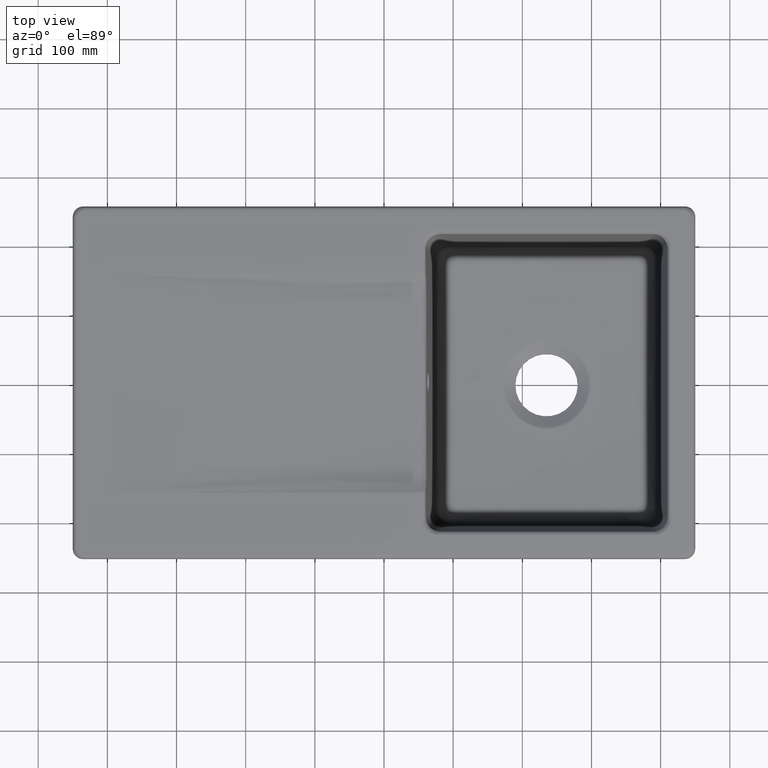
[diagram: clean part render]
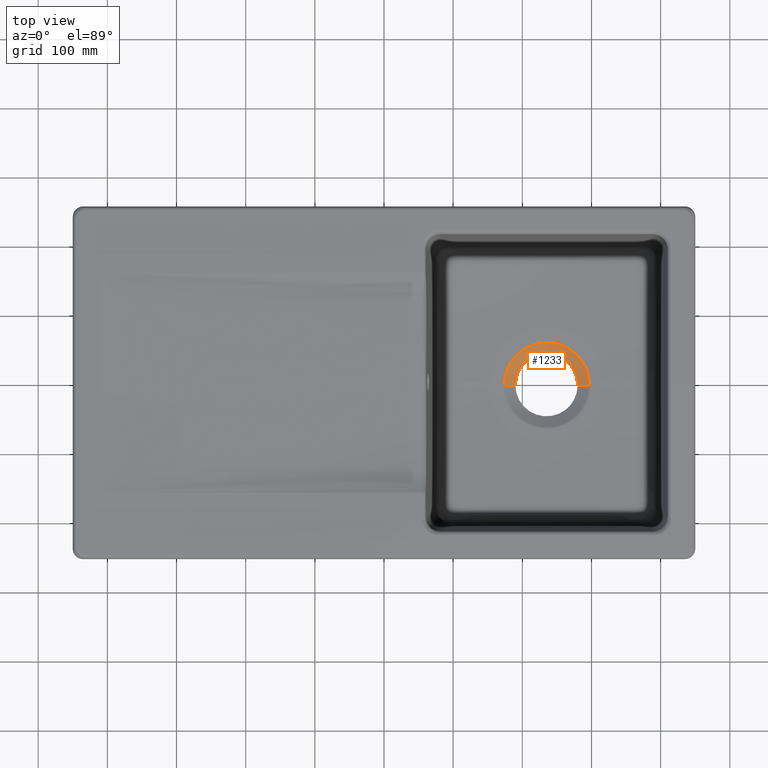
[diagram: same view with one face highlighted and labeled with its STEP entity id]
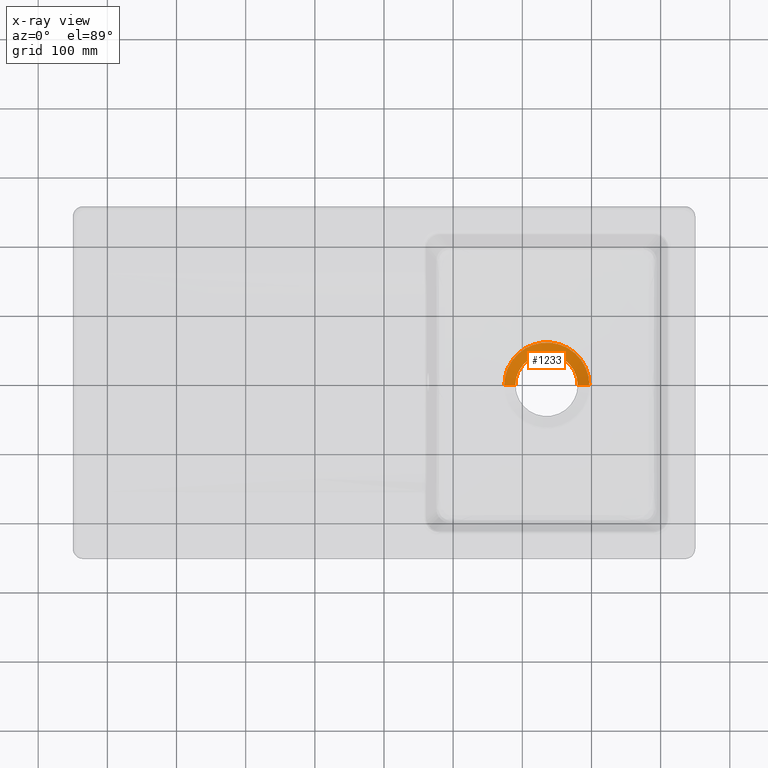
[diagram: x-ray of the same camera — body ghosted, the highlighted face saturated]
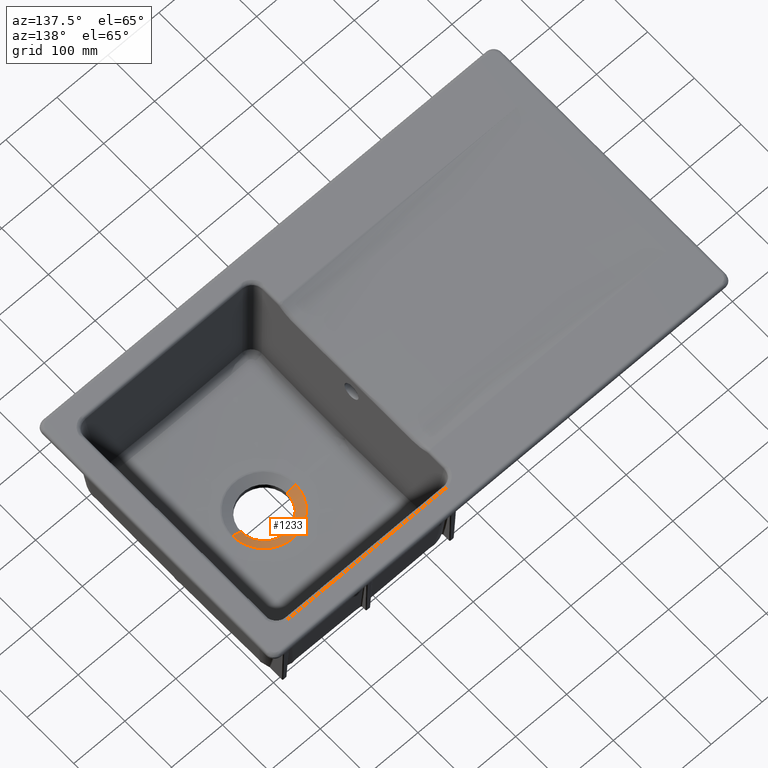
[diagram: same view with one face highlighted and labeled with its STEP entity id]
A machine part, top view. The second image highlights one B-rep face of the part: STEP entity #1233.
The next image is the same camera in x-ray: the body ghosted, the highlighted face saturated — about 0% of this face is hidden behind the body in this view.
A second angle (auxiliary view) of the same face is appended — the face is thin or edge-on in the first view.
In plain terms, the highlighted face is a freeform B-spline surface patch.
Its self-contained STEP definition (entity closure, byte-faithful):
#56=B_SPLINE_SURFACE_WITH_KNOTS('',3,3,((#9302,#9303,#9304,#9305,#9306,
#9307,#9308,#9309,#9310,#9311,#9312,#9313,#9314,#9315,#9316,#9317,#9318,
#9319,#9320,#9321,#9322,#9323,#9324,#9325,#9326,#9327,#9328,#9329,#9330,
#9331,#9332,#9333,#9334,#9335,#9336,#9337,#9338,#9339,#9340,#9341,#9342,
#9343,#9344,#9345,#9346,#9347,#9348,#9349,#9350,#9351,#9352),(#9353,#9354,
#9355,#9356,#9357,#9358,#9359,#9360,#9361,#9362,#9363,#9364,#9365,#9366,
#9367,#9368,#9369,#9370,#9371,#9372,#9373,#9374,#9375,#9376,#9377,#9378,
#9379,#9380,#9381,#9382,#9383,#9384,#9385,#9386,#9387,#9388,#9389,#9390,
#9391,#9392,#9393,#9394,#9395,#9396,#9397,#9398,#9399,#9400,#9401,#9402,
#9403),(#9404,#9405,#9406,#9407,#9408,#9409,#9410,#9411,#9412,#9413,#9414,
#9415,#9416,#9417,#9418,#9419,#9420,#9421,#9422,#9423,#9424,#9425,#9426,
#9427,#9428,#9429,#9430,#9431,#9432,#9433,#9434,#9435,#9436,#9437,#9438,
#9439,#9440,#9441,#9442,#9443,#9444,#9445,#9446,#9447,#9448,#9449,#9450,
#9451,#9452,#9453,#9454),(#9455,#9456,#9457,#9458,#9459,#9460,#9461,#9462,
#9463,#9464,#9465,#9466,#9467,#9468,#9469,#9470,#9471,#9472,#9473,#9474,
#9475,#9476,#9477,#9478,#9479,#9480,#9481,#9482,#9483,#9484,#9485,#9486,
#9487,#9488,#9489,#9490,#9491,#9492,#9493,#9494,#9495,#9496,#9497,#9498,
#9499,#9500,#9501,#9502,#9503,#9504,#9505),(#9506,#9507,#9508,#9509,#9510,
#9511,#9512,#9513,#9514,#9515,#9516,#9517,#9518,#9519,#9520,#9521,#9522,
#9523,#9524,#9525,#9526,#9527,#9528,#9529,#9530,#9531,#9532,#9533,#9534,
#9535,#9536,#9537,#9538,#9539,#9540,#9541,#9542,#9543,#9544,#9545,#9546,
#9547,#9548,#9549,#9550,#9551,#9552,#9553,#9554,#9555,#9556),(#9557,#9558,
#9559,#9560,#9561,#9562,#9563,#9564,#9565,#9566,#9567,#9568,#9569,#9570,
#9571,#9572,#9573,#9574,#9575,#9576,#9577,#9578,#9579,#9580,#9581,#9582,
#9583,#9584,#9585,#9586,#9587,#9588,#9589,#9590,#9591,#9592,#9593,#9594,
#9595,#9596,#9597,#9598,#9599,#9600,#9601,#9602,#9603,#9604,#9605,#9606,
#9607),(#9608,#9609,#9610,#9611,#9612,#9613,#9614,#9615,#9616,#9617,#9618,
#9619,#9620,#9621,#9622,#9623,#9624,#9625,#9626,#9627,#9628,#9629,#9630,
#9631,#9632,#9633,#9634,#9635,#9636,#9637,#9638,#9639,#9640,#9641,#9642,
#9643,#9644,#9645,#9646,#9647,#9648,#9649,#9650,#9651,#9652,#9653,#9654,
#9655,#9656,#9657,#9658),(#9659,#9660,#9661,#9662,#9663,#9664,#9665,#9666,
#9667,#9668,#9669,#9670,#9671,#9672,#9673,#9674,#9675,#9676,#9677,#9678,
#9679,#9680,#9681,#9682,#9683,#9684,#9685,#9686,#9687,#9688,#9689,#9690,
#9691,#9692,#9693,#9694,#9695,#9696,#9697,#9698,#9699,#9700,#9701,#9702,
#9703,#9704,#9705,#9706,#9707,#9708,#9709),(#9710,#9711,#9712,#9713,#9714,
#9715,#9716,#9717,#9718,#9719,#9720,#9721,#9722,#9723,#9724,#9725,#9726,
#9727,#9728,#9729,#9730,#9731,#9732,#9733,#9734,#9735,#9736,#9737,#9738,
#9739,#9740,#9741,#9742,#9743,#9744,#9745,#9746,#9747,#9748,#9749,#9750,
#9751,#9752,#9753,#9754,#9755,#9756,#9757,#9758,#9759,#9760),(#9761,#9762,
#9763,#9764,#9765,#9766,#9767,#9768,#9769,#9770,#9771,#9772,#9773,#9774,
#9775,#9776,#9777,#9778,#9779,#9780,#9781,#9782,#9783,#9784,#9785,#9786,
#9787,#9788,#9789,#9790,#9791,#9792,#9793,#9794,#9795,#9796,#9797,#9798,
#9799,#9800,#9801,#9802,#9803,#9804,#9805,#9806,#9807,#9808,#9809,#9810,
#9811),(#9812,#9813,#9814,#9815,#9816,#9817,#9818,#9819,#9820,#9821,#9822,
#9823,#9824,#9825,#9826,#9827,#9828,#9829,#9830,#9831,#9832,#9833,#9834,
#9835,#9836,#9837,#9838,#9839,#9840,#9841,#9842,#9843,#9844,#9845,#9846,
#9847,#9848,#9849,#9850,#9851,#9852,#9853,#9854,#9855,#9856,#9857,#9858,
#9859,#9860,#9861,#9862)),.UNSPECIFIED.,.F.,.F.,.F.,(4,1,1,1,1,1,1,1,4),
(4,2,2,2,2,2,2,2,2,2,1,2,2,2,2,2,2,2,2,2,2,2,2,2,2,4),(0.,0.0481751764546164,
0.0838681897529503,0.11607870494931,0.148289220145671,0.209140949208557,
0.212710250538391,0.227026035070106,1.),(0.,0.00980296049406921,0.0710714635820019,
0.101705715125968,0.132339966669935,0.193608469757867,0.224242721301833,
0.254876972845799,0.316145475933732,0.346779727477698,0.377413979021665,
0.408048230565631,0.438682482109598,0.499950985197531,0.530585236741497,
0.561219488285464,0.622487991373396,0.653122242917363,0.683756494461329,
0.745024997549261,0.806293500637193,0.836927752181159,0.867562003725125,
0.928830506813058,0.99009900990099,1.),.UNSPECIFIED.);
#339=B_SPLINE_CURVE_WITH_KNOTS('',3,(#7821,#7822,#7823,#7824,#7825,#7826,
#7827,#7828,#7829,#7830,#7831,#7832,#7833,#7834,#7835,#7836,#7837,#7838,
#7839,#7840,#7841,#7842,#7843,#7844,#7845,#7846,#7847,#7848,#7849,#7850,
#7851,#7852,#7853,#7854),.UNSPECIFIED.,.F.,.F.,(4,2,2,2,2,2,2,2,2,2,2,2,
2,2,2,2,4),(0.,0.0625,0.125,0.1875,0.25,0.3125,0.375,0.4375,0.5,0.5625,
0.625,0.6875,0.75,0.8125,0.875,0.9375,1.),.UNSPECIFIED.);
#395=B_SPLINE_CURVE_WITH_KNOTS('',3,(#9266,#9267,#9268,#9269),
 .UNSPECIFIED.,.F.,.F.,(4,4),(0.,1.),.UNSPECIFIED.);
#396=B_SPLINE_CURVE_WITH_KNOTS('',3,(#9271,#9272,#9273,#9274),
 .UNSPECIFIED.,.F.,.F.,(4,4),(0.,1.),.UNSPECIFIED.);
#397=B_SPLINE_CURVE_WITH_KNOTS('',3,(#9276,#9277,#9278,#9279,#9280,#9281,
#9282,#9283,#9284,#9285,#9286,#9287,#9288,#9289,#9290,#9291,#9292,#9293,
#9294,#9295,#9296,#9297,#9298,#9299,#9300,#9301),.UNSPECIFIED.,.F.,.F.,
(4,2,2,2,2,2,2,2,2,2,2,2,4),(0.,0.125,0.25,0.3125,0.375,0.4375,0.5,0.625,
0.6875,0.75,0.8125,0.875,1.),.UNSPECIFIED.);
#1233=ADVANCED_FACE('',(#1588),#56,.T.);
#1588=FACE_OUTER_BOUND('',#1920,.T.);
#1920=EDGE_LOOP('',(#2527,#2528,#2529,#2530));
#2527=ORIENTED_EDGE('',*,*,#4393,.F.);
#2528=ORIENTED_EDGE('',*,*,#4254,.T.);
#2529=ORIENTED_EDGE('',*,*,#4394,.F.);
#2530=ORIENTED_EDGE('',*,*,#4395,.F.);
#3779=VERTEX_POINT('',#7162);
#3781=VERTEX_POINT('',#7312);
#3875=VERTEX_POINT('',#9270);
#3876=VERTEX_POINT('',#9275);
#4254=EDGE_CURVE('',#3781,#3779,#339,.T.);
#4393=EDGE_CURVE('',#3781,#3875,#395,.T.);
#4394=EDGE_CURVE('',#3876,#3779,#396,.T.);
#4395=EDGE_CURVE('',#3875,#3876,#397,.T.);
#7162=CARTESIAN_POINT('',(174.106075905745,0.000689787351148888,-200.295757093103));
#7312=CARTESIAN_POINT('',(296.894853272102,0.000705542883609147,-200.271552165662));
#7821=CARTESIAN_POINT('',(296.895477079672,-1.38919913511184E-14,-200.27263707282));
#7822=CARTESIAN_POINT('',(296.902460884382,4.08010811618891,-200.272298705178));
#7823=CARTESIAN_POINT('',(296.514069328905,8.0367705300038,-200.271530409426));
#7824=CARTESIAN_POINT('',(294.957890198809,15.9296265301385,-200.27165449576));
#7825=CARTESIAN_POINT('',(293.792242872979,19.7996863689592,-200.27184960564));
#7826=CARTESIAN_POINT('',(290.703692149865,27.2794122582054,-200.27217585702));
#7827=CARTESIAN_POINT('',(288.837464002236,30.7795977284551,-200.272409343707));
#7828=CARTESIAN_POINT('',(284.364787432127,37.4958225326043,-200.273037610196));
#7829=CARTESIAN_POINT('',(281.795351555056,40.6331988518361,-200.273376106257));
#7830=CARTESIAN_POINT('',(276.104575611236,46.3336008959262,-200.274283801003));
#7831=CARTESIAN_POINT('',(273.040698313252,48.8572225145522,-200.274791956489));
#7832=CARTESIAN_POINT('',(266.295294488867,53.375507600685,-200.275914301853));
#7833=CARTESIAN_POINT('',(262.727220195161,55.2804713689488,-200.276540102359));
#7834=CARTESIAN_POINT('',(255.350498492465,58.3426177293803,-200.277860047805));
#7835=CARTESIAN_POINT('',(251.486292648763,59.523588240268,-200.278420807893));
#7836=CARTESIAN_POINT('',(243.520290852126,61.1116196791733,-200.279855687933));
#7837=CARTESIAN_POINT('',(239.569356500561,61.4995409773685,-200.281369496293));
#7838=CARTESIAN_POINT('',(231.515982501151,61.5050925849822,-200.283101200267));
#7839=CARTESIAN_POINT('',(227.480939398892,61.1099850080889,-200.282985562604));
#7840=CARTESIAN_POINT('',(219.564503882395,59.5353083826595,-200.284636286534));
#7841=CARTESIAN_POINT('',(215.768366074245,58.3855947442939,-200.285554785934));
#7842=CARTESIAN_POINT('',(208.293572225083,55.2933617941391,-200.287146919545));
#7843=CARTESIAN_POINT('',(204.727718734658,53.385625306356,-200.287931933871));
#7844=CARTESIAN_POINT('',(198.03868440267,48.9146767883709,-200.289409051354));
#7845=CARTESIAN_POINT('',(194.963260468508,46.3966964260402,-200.290128699713));
#7846=CARTESIAN_POINT('',(189.200167795339,40.6320675397774,-200.291499311088));
#7847=CARTESIAN_POINT('',(186.678949707019,37.5506017684797,-200.292102866861));
#7848=CARTESIAN_POINT('',(182.21132386172,30.8612917173605,-200.293283386345));
#7849=CARTESIAN_POINT('',(180.306793821356,27.299340312247,-200.293805256813));
#7850=CARTESIAN_POINT('',(177.214535107742,19.8176983344342,-200.294718801863));
#7851=CARTESIAN_POINT('',(176.066484000637,16.0206639602873,-200.295019154941));
#7852=CARTESIAN_POINT('',(174.495431388239,8.10835274081981,-200.29558740214));
#7853=CARTESIAN_POINT('',(174.098433979384,4.07985293253689,-200.296629868968));
#7854=CARTESIAN_POINT('',(174.105445490616,-2.89889382218288E-14,-200.296853136298));
#9266=CARTESIAN_POINT('',(296.895477298257,-2.47598354319456E-14,-200.27263694662));
#9267=CARTESIAN_POINT('',(291.263651532177,-2.28992799281515E-14,-203.524173068695));
#9268=CARTESIAN_POINT('',(285.63182576609,-6.7647485445602E-15,-206.775709190767));
#9269=CARTESIAN_POINT('',(280.000000000014,-1.39950381096755E-14,-210.027245312844));
#9270=CARTESIAN_POINT('',(280.000000000007,-4.94874939699483E-11,-210.027245312848));
#9271=CARTESIAN_POINT('',(190.000000000017,-1.56514906942027E-14,-209.473578460948));
#9272=CARTESIAN_POINT('',(184.701815161735,-1.68850270137304E-14,-206.41467001835));
#9273=CARTESIAN_POINT('',(179.403630323453,-1.54801472842487E-14,-203.355761575752));
#9274=CARTESIAN_POINT('',(174.10544548517,-1.5570562985116E-14,-200.296853133153));
#9275=CARTESIAN_POINT('',(190.000000000003,6.44865070415484E-10,-209.473578460941));
#9276=CARTESIAN_POINT('',(280.,-9.89394514865811E-11,-210.027245312852));
#9277=CARTESIAN_POINT('',(280.000000000013,5.94716553743018,-210.032964445664));
#9278=CARTESIAN_POINT('',(278.83724822178,11.766420057402,-210.032062856258));
#9279=CARTESIAN_POINT('',(274.293560156665,22.7193552470084,-210.027577598765));
#9280=CARTESIAN_POINT('',(270.975990429457,27.6713585734145,-210.000821286661));
#9281=CARTESIAN_POINT('',(264.697372566649,33.938327239382,-209.983419076304));
#9282=CARTESIAN_POINT('',(262.427727415356,35.7959166198855,-209.963327517576));
#9283=CARTESIAN_POINT('',(257.541746178397,39.0576184253163,-209.945614459932));
#9284=CARTESIAN_POINT('',(254.897383638422,40.468964233323,-209.933921116297));
#9285=CARTESIAN_POINT('',(249.462986165494,42.7137562495885,-209.900576795358));
#9286=CARTESIAN_POINT('',(246.657106785465,43.5640672165982,-209.874094531502));
#9287=CARTESIAN_POINT('',(240.865493619911,44.7136676605129,-209.851317444921));
#9288=CARTESIAN_POINT('',(237.896724780355,45.002281015116,-209.822723676314));
#9289=CARTESIAN_POINT('',(229.100887597093,44.9953966192571,-209.783599458527));
#9290=CARTESIAN_POINT('',(223.175758536147,43.8131951247797,-209.72520044874));
#9291=CARTESIAN_POINT('',(215.048443186342,40.4417799932293,-209.684642170649));
#9292=CARTESIAN_POINT('',(212.412417820723,39.0319402223261,-209.656136319501));
#9293=CARTESIAN_POINT('',(207.51313034859,35.7514086854104,-209.633100270417));
#9294=CARTESIAN_POINT('',(205.248744665013,33.8898770226816,-209.605997412177));
#9295=CARTESIAN_POINT('',(201.088310530653,29.7263902274509,-209.584680174515));
#9296=CARTESIAN_POINT('',(199.190086010995,27.4092205325888,-209.561177123302));
#9297=CARTESIAN_POINT('',(195.933041998395,22.5252769706576,-209.542619834361));
#9298=CARTESIAN_POINT('',(194.54927766413,19.9377417469435,-209.523551237396));
#9299=CARTESIAN_POINT('',(191.152551755755,11.726005983027,-209.501849641731));
#9300=CARTESIAN_POINT('',(190.000000000103,5.94707811686675,-209.478842755072));
#9301=CARTESIAN_POINT('',(190.,7.73845586106179E-10,-209.47357846094));
#9302=CARTESIAN_POINT('',(269.988023149942,-1.33826655358982,-215.80631050313));
#9303=CARTESIAN_POINT('',(269.988809136279,-0.892177702393213,-215.806307493449));
#9304=CARTESIAN_POINT('',(269.989607107134,-0.446088870884872,-215.80632524164));
#9305=CARTESIAN_POINT('',(269.99521861966,2.78805544303089,-215.806152926217));
#9306=CARTESIAN_POINT('',(269.865244274298,4.11275474483563,-215.806014369634));
#9307=CARTESIAN_POINT('',(269.07740343179,8.1091562524692,-215.806285255446));
#9308=CARTESIAN_POINT('',(268.916304222749,8.75816497627436,-215.806390113357));
#9309=CARTESIAN_POINT('',(268.130908257019,11.3638463656275,-215.806660832589));
#9310=CARTESIAN_POINT('',(267.899165037712,12.0143863878895,-215.806781515208));
#9311=CARTESIAN_POINT('',(266.341010022399,15.7881548330652,-215.807231322922));
#9312=CARTESIAN_POINT('',(265.715852648216,16.9608188902975,-215.807527866341));
#9313=CARTESIAN_POINT('',(263.455045517151,20.3559026509986,-215.808191537302));
#9314=CARTESIAN_POINT('',(263.050678185625,20.9031682201074,-215.808369079647));
#9315=CARTESIAN_POINT('',(261.320505399127,23.0160686988168,-215.808863520513));
#9316=CARTESIAN_POINT('',(260.870472529897,23.5131009057065,-215.809062790808));
#9317=CARTESIAN_POINT('',(257.990108513305,26.3985429093562,-215.809916315356));
#9318=CARTESIAN_POINT('',(256.963677863515,27.2441100189473,-215.810369864641));
#9319=CARTESIAN_POINT('',(253.564729566611,29.5210339853019,-215.8113675951));
#9320=CARTESIAN_POINT('',(252.975037826706,29.8750372208569,-215.81161965712));
#9321=CARTESIAN_POINT('',(250.579776709513,31.1571350671315,-215.812332649155));
#9322=CARTESIAN_POINT('',(248.750461862187,32.0233835787093,-215.812956170252));
#9323=CARTESIAN_POINT('',(246.845706890811,32.7074342324995,-215.813609437453));
#9324=CARTESIAN_POINT('',(244.246698708846,33.4988173884827,-215.81434149352));
#9325=CARTESIAN_POINT('',(243.580907643067,33.6663514785626,-215.814592914907));
#9326=CARTESIAN_POINT('',(239.569169376798,34.4663003062462,-215.815778884015));
#9327=CARTESIAN_POINT('',(238.245671477055,34.5963793691357,-215.816600315151));
#9328=CARTESIAN_POINT('',(234.16603861788,34.5993991361722,-215.817933547332));
#9329=CARTESIAN_POINT('',(233.495378991914,34.5672608293684,-215.818105081366));
#9330=CARTESIAN_POINT('',(230.779809279341,34.3013606835583,-215.81864669217));
#9331=CARTESIAN_POINT('',(230.105698846658,34.2013481006284,-215.818908894398));
#9332=CARTESIAN_POINT('',(226.105432811628,33.4058585980021,-215.820182190216));
#9333=CARTESIAN_POINT('',(224.833342937503,33.0207261847927,-215.820780602866));
#9334=CARTESIAN_POINT('',(221.060960708178,31.4603538115872,-215.821993153971));
#9335=CARTESIAN_POINT('',(220.437003598118,31.1655056264395,-215.822267177647));
#9336=CARTESIAN_POINT('',(218.036233643628,29.8818434111244,-215.823053431794));
#9337=CARTESIAN_POINT('',(217.462488510498,29.5375895359427,-215.823306668635));
#9338=CARTESIAN_POINT('',(214.074350341523,27.2731773483273,-215.82441789142));
#9339=CARTESIAN_POINT('',(213.043936403741,26.429673548612,-215.824891247886));
#9340=CARTESIAN_POINT('',(209.174783979801,22.559785078507,-215.826224891248));
#9341=CARTESIAN_POINT('',(208.328008709125,21.5249832837868,-215.826617518101));
#9342=CARTESIAN_POINT('',(206.065524673316,18.1376135417819,-215.827450302399));
#9343=CARTESIAN_POINT('',(205.721564936274,17.5640602129936,-215.827619687959));
#9344=CARTESIAN_POINT('',(204.439267427752,15.1644722076966,-215.828104311561));
#9345=CARTESIAN_POINT('',(204.144134787912,14.5397538916196,-215.828249771856));
#9346=CARTESIAN_POINT('',(202.584092893052,10.7654794068725,-215.828863909367));
#9347=CARTESIAN_POINT('',(202.199302841734,9.49294933765629,-215.829041855284));
#9348=CARTESIAN_POINT('',(201.140780387827,4.16214272087774,-215.82949793196));
#9349=CARTESIAN_POINT('',(201.00483391885,2.78271011742261,-215.829867294489));
#9350=CARTESIAN_POINT('',(201.010392084273,-0.44968595497599,-215.830003861358));
#9351=CARTESIAN_POINT('',(201.011119202197,-0.899371985890104,-215.830102751875));
#9352=CARTESIAN_POINT('',(201.011869382835,-1.34905797883515,-215.830161696602));
#9353=CARTESIAN_POINT('',(270.437794341546,-1.34863454874163,-215.546627952285));
#9354=CARTESIAN_POINT('',(270.438585919876,-0.899089699161085,-215.546624058165));
#9355=CARTESIAN_POINT('',(270.439389065667,-0.449544868418938,-215.546640177943));
#9356=CARTESIAN_POINT('',(270.445044143892,2.80965542761872,-215.546466844256));
#9357=CARTESIAN_POINT('',(270.310751172346,4.17835484664939,-215.546319770812));
#9358=CARTESIAN_POINT('',(269.516571412845,8.20690843093639,-215.546590309722));
#9359=CARTESIAN_POINT('',(269.350153814641,8.87733892013467,-215.546695470144));
#9360=CARTESIAN_POINT('',(268.558336577498,11.504321724479,-215.546965752567));
#9361=CARTESIAN_POINT('',(268.319133566586,12.1757990646836,-215.547086409763));
#9362=CARTESIAN_POINT('',(266.748303717372,15.9802617259396,-215.547534669702));
#9363=CARTESIAN_POINT('',(266.102399347353,17.191836658019,-215.547831177182));
#9364=CARTESIAN_POINT('',(263.823309071451,20.6143725387581,-215.548492840133));
#9365=CARTESIAN_POINT('',(263.405751637045,21.1794864354618,-215.548670392073));
#9366=CARTESIAN_POINT('',(261.661401685902,23.3096974054956,-215.549163257356));
#9367=CARTESIAN_POINT('',(261.196512782535,23.8231341856052,-215.549362808189));
#9368=CARTESIAN_POINT('',(258.292949855039,26.7318118106717,-215.550214055639));
#9369=CARTESIAN_POINT('',(257.232457955058,27.6054324442961,-215.550668737621));
#9370=CARTESIAN_POINT('',(253.805756628493,29.9009434419419,-215.551663945607));
#9371=CARTESIAN_POINT('',(253.197013785983,30.2663804134632,-215.551916758485));
#9372=CARTESIAN_POINT('',(250.782241689962,31.5589187812035,-215.552628109089));
#9373=CARTESIAN_POINT('',(248.923090917368,32.4392916973295,-215.553251657553));
#9374=CARTESIAN_POINT('',(246.987274598797,33.1344932864,-215.553905128177));
#9375=CARTESIAN_POINT('',(244.367118180153,33.9323128769038,-215.554635161847));
#9376=CARTESIAN_POINT('',(243.679782366912,34.1052652087634,-215.554886733784));
#9377=CARTESIAN_POINT('',(239.635230556647,34.9117524309097,-215.556070118933));
#9378=CARTESIAN_POINT('',(238.267807226453,35.0461423844367,-215.556902511779));
#9379=CARTESIAN_POINT('',(234.155400078564,35.0491817599118,-215.558234112443));
#9380=CARTESIAN_POINT('',(233.462660898136,35.0159822168236,-215.55840323149));
#9381=CARTESIAN_POINT('',(230.724820832841,34.7478982774181,-215.558940982182));
#9382=CARTESIAN_POINT('',(230.028736915562,34.6446224636525,-215.559203781565));
#9383=CARTESIAN_POINT('',(225.996086507111,33.842688385993,-215.56047519807));
#9384=CARTESIAN_POINT('',(224.68179924067,33.4447740802355,-215.561078035939));
#9385=CARTESIAN_POINT('',(220.878760226766,31.8717165471849,-215.562288827038));
#9386=CARTESIAN_POINT('',(220.234709540745,31.5673700508648,-215.562564436916));
#9387=CARTESIAN_POINT('',(217.81430740314,30.273207722771,-215.563349653436));
#9388=CARTESIAN_POINT('',(217.221634580506,29.9175938484152,-215.5636043275));
#9389=CARTESIAN_POINT('',(213.806267977148,27.6349795512316,-215.564713953399));
#9390=CARTESIAN_POINT('',(212.741664974335,26.7634821254249,-215.565190383114));
#9391=CARTESIAN_POINT('',(208.840848470147,22.8619178304414,-215.566522569664));
#9392=CARTESIAN_POINT('',(207.966079260052,21.79290006546,-215.566917692221));
#9393=CARTESIAN_POINT('',(205.685401288663,18.3782866572813,-215.567749856835));
#9394=CARTESIAN_POINT('',(205.330095941146,17.7858116969271,-215.567920584485));
#9395=CARTESIAN_POINT('',(204.037321466058,15.3666154207137,-215.568404934705));
#9396=CARTESIAN_POINT('',(203.732695699979,14.7217999217684,-215.56855151307));
#9397=CARTESIAN_POINT('',(202.159961654156,10.9168152314981,-215.569165468593));
#9398=CARTESIAN_POINT('',(201.762411013594,9.60208035249689,-215.569344603411));
#9399=CARTESIAN_POINT('',(200.69531958885,4.22811597238837,-215.569800999849));
#9400=CARTESIAN_POINT('',(200.555008717719,2.80439594646524,-215.570180917295));
#9401=CARTESIAN_POINT('',(200.560610133642,-0.453190384949208,-215.570318846765));
#9402=CARTESIAN_POINT('',(200.561343932833,-0.906380843686149,-215.57041672324));
#9403=CARTESIAN_POINT('',(200.562100462579,-1.35957126552921,-215.570475255729));
#9404=CARTESIAN_POINT('',(271.220801243002,-1.36668419689535,-215.094546464419));
#9405=CARTESIAN_POINT('',(271.221602556435,-0.911122797930237,-215.09454103058));
#9406=CARTESIAN_POINT('',(271.222414958742,-0.455561417196821,-215.094554804734));
#9407=CARTESIAN_POINT('',(271.228144086358,2.84725885748036,-215.094376151019));
#9408=CARTESIAN_POINT('',(271.086331262895,4.29255810754928,-215.094211940013));
#9409=CARTESIAN_POINT('',(270.281113768683,8.37708526312666,-215.09447937392));
#9410=CARTESIAN_POINT('',(270.105436616918,9.08480891598303,-215.094584388082));
#9411=CARTESIAN_POINT('',(269.302439062062,11.7488753665047,-215.094852859769));
#9412=CARTESIAN_POINT('',(269.050248540213,12.4568024950024,-215.0949730953));
#9413=CARTESIAN_POINT('',(267.457350822526,16.3147007340409,-215.095417932659));
#9414=CARTESIAN_POINT('',(266.775326533093,17.5940156280828,-215.095714431047));
#9415=CARTESIAN_POINT('',(264.464405002733,21.0643429172268,-215.096373330281));
#9416=CARTESIAN_POINT('',(264.023884218187,21.6605289759762,-215.096551251562));
#9417=CARTESIAN_POINT('',(262.254851877992,23.8208757875132,-215.097042270377));
#9418=CARTESIAN_POINT('',(261.764099434472,24.362871296575,-215.097242853434));
#9419=CARTESIAN_POINT('',(258.820147576308,27.3119998233036,-215.098092015827));
#9420=CARTESIAN_POINT('',(257.70035720926,28.234458848406,-215.098550252709));
#9421=CARTESIAN_POINT('',(254.225338925912,30.5623280132334,-215.099543782645));
#9422=CARTESIAN_POINT('',(253.583429467156,30.9476699797904,-215.0997988636));
#9423=CARTESIAN_POINT('',(251.134689664342,32.2583842529138,-215.100509365343));
#9424=CARTESIAN_POINT('',(249.223596530238,33.1633463482446,-215.101135057026));
#9425=CARTESIAN_POINT('',(247.233704622084,33.8779606021139,-215.101791098945));
#9426=CARTESIAN_POINT('',(244.576730412752,34.6869853805364,-215.102519863689));
#9427=CARTESIAN_POINT('',(243.851886960001,34.8693703301552,-215.102772841013));
#9428=CARTESIAN_POINT('',(239.750208998404,35.6872402400972,-215.103955170568));
#9429=CARTESIAN_POINT('',(238.306315302048,35.8291350210118,-215.104808959135));
#9430=CARTESIAN_POINT('',(234.136850758232,35.832208526555,-215.10614105764));
#9431=CARTESIAN_POINT('',(233.405673100469,35.7971614746198,-215.106307063381));
#9432=CARTESIAN_POINT('',(230.629062306576,35.5252757638571,-215.106840206314));
#9433=CARTESIAN_POINT('',(229.894724648051,35.4163189879263,-215.107105066619));
#9434=CARTESIAN_POINT('',(225.805696121365,34.603165540803,-215.108376131947));
#9435=CARTESIAN_POINT('',(224.417947463231,34.1829992284114,-215.108988429323));
#9436=CARTESIAN_POINT('',(220.561538423482,32.587858089982,-215.110198346367));
#9437=CARTESIAN_POINT('',(219.88250699616,32.2669759776077,-215.110477373722));
#9438=CARTESIAN_POINT('',(217.427927630212,30.9545339956676,-215.111261922032));
#9439=CARTESIAN_POINT('',(216.802303856989,30.5791434919843,-215.111519580286));
#9440=CARTESIAN_POINT('',(213.339536234559,28.2648411307912,-215.112627572579));
#9441=CARTESIAN_POINT('',(212.215414328082,27.3446095862047,-215.113109716778));
#9442=CARTESIAN_POINT('',(208.259475976486,23.3879008320277,-215.114439087061));
#9443=CARTESIAN_POINT('',(207.335973411649,22.2593164679956,-215.114837910028));
#9444=CARTESIAN_POINT('',(205.023623939469,18.7972745510086,-215.11566711632));
#9445=CARTESIAN_POINT('',(204.648567851101,18.1718589139774,-215.115839401761));
#9446=CARTESIAN_POINT('',(203.337555823516,15.7185265924734,-215.116321388318));
#9447=CARTESIAN_POINT('',(203.016404434765,15.0387238996079,-215.116468804074));
#9448=CARTESIAN_POINT('',(201.421577712288,11.1802758041539,-215.11707858088));
#9449=CARTESIAN_POINT('',(201.001814483482,9.79206655625903,-215.117256497918));
#9450=CARTESIAN_POINT('',(199.91981055708,4.34296881946127,-215.117705241385));
#9451=CARTESIAN_POINT('',(199.771904591899,2.84214880624992,-215.118098611816));
#9452=CARTESIAN_POINT('',(199.77758501877,-0.459291247090305,-215.118232125418));
#9453=CARTESIAN_POINT('',(199.778329932401,-0.918582567869633,-215.118329180886));
#9454=CARTESIAN_POINT('',(199.779097515313,-1.37787385180444,-215.118386995711));
#9455=CARTESIAN_POINT('',(272.304530692215,-1.39166601406163,-214.468838030773));
#9456=CARTESIAN_POINT('',(272.305345479625,-0.927777342707753,-214.468830465867));
#9457=CARTESIAN_POINT('',(272.306168832074,-0.463888685530225,-214.468837749276));
#9458=CARTESIAN_POINT('',(272.312013944003,2.89930428456399,-214.468675253161));
#9459=CARTESIAN_POINT('',(272.159803715956,4.45062236930706,-214.46850446664));
#9460=CARTESIAN_POINT('',(271.339323568342,8.61262034961915,-214.468789144494));
#9461=CARTESIAN_POINT('',(271.150835118638,9.37196001559431,-214.468900440982));
#9462=CARTESIAN_POINT('',(270.33237180266,12.08735248879,-214.469178072004));
#9463=CARTESIAN_POINT('',(270.06220976312,12.8457283485295,-214.469302904626));
#9464=CARTESIAN_POINT('',(268.438780019377,16.7775846813472,-214.46975672224));
#9465=CARTESIAN_POINT('',(267.706770092264,18.1506558190395,-214.470059919739));
#9466=CARTESIAN_POINT('',(265.351800631434,21.6871293326657,-214.470721936291));
#9467=CARTESIAN_POINT('',(264.879499766935,22.3263211621697,-214.47090216206));
#9468=CARTESIAN_POINT('',(263.0763102649,24.5283778182198,-214.471393257576));
#9469=CARTESIAN_POINT('',(262.549763272787,25.1099003537933,-214.471596108359));
#9470=CARTESIAN_POINT('',(259.549916567396,28.1150154001094,-214.472443601781));
#9471=CARTESIAN_POINT('',(258.34805660902,29.1050697463557,-214.4729058365));
#9472=CARTESIAN_POINT('',(254.806168247588,31.4777245957478,-214.47389358453));
#9473=CARTESIAN_POINT('',(254.11835515729,31.8906162939847,-214.474150305533));
#9474=CARTESIAN_POINT('',(251.622603601285,33.2264871344748,-214.474856029716));
#9475=CARTESIAN_POINT('',(249.639620334548,34.1654821610535,-214.475480480566));
#9476=CARTESIAN_POINT('',(247.574885095583,34.9069647346302,-214.476134840018));
#9477=CARTESIAN_POINT('',(244.866953082396,35.7314981831463,-214.476856177575));
#9478=CARTESIAN_POINT('',(244.090196736228,35.926938455257,-214.477108049787));
#9479=CARTESIAN_POINT('',(239.909452151939,36.7605627094954,-214.478279254284));
#9480=CARTESIAN_POINT('',(238.359717824894,36.9128446367303,-214.479155528774));
#9481=CARTESIAN_POINT('',(234.111280097252,36.9159653902366,-214.48047712389));
#9482=CARTESIAN_POINT('',(233.326900348228,36.8783612764354,-214.480635006151));
#9483=CARTESIAN_POINT('',(230.496626467888,36.6012136884871,-214.481154062918));
#9484=CARTESIAN_POINT('',(229.709342152312,36.4843941169427,-214.481417881329));
#9485=CARTESIAN_POINT('',(225.542279092511,35.6557123868761,-214.48267678906));
#9486=CARTESIAN_POINT('',(224.052852393602,35.2047479433714,-214.483294413117));
#9487=CARTESIAN_POINT('',(220.122570905161,33.5790417548352,-214.484492019057));
#9488=CARTESIAN_POINT('',(219.395122203161,33.2352733418281,-214.484772167194));
#9489=CARTESIAN_POINT('',(216.893235703449,31.8975312075941,-214.485548842138));
#9490=CARTESIAN_POINT('',(216.222003828776,31.4947686424858,-214.485807291375));
#9491=CARTESIAN_POINT('',(212.693624140266,29.1366080719068,-214.48690354079));
#9492=CARTESIAN_POINT('',(211.48711999892,28.1489255317206,-214.487387987624));
#9493=CARTESIAN_POINT('',(207.454880262291,24.1158934829924,-214.488704375859));
#9494=CARTESIAN_POINT('',(206.463922808451,22.9048653064309,-214.489104842833));
#9495=CARTESIAN_POINT('',(204.107730345001,19.3771794368112,-214.48992685956));
#9496=CARTESIAN_POINT('',(203.705335410976,18.7061718895657,-214.490100622973));
#9497=CARTESIAN_POINT('',(202.369076195316,16.2055931952627,-214.490578776357));
#9498=CARTESIAN_POINT('',(202.025049646263,15.4773660865024,-214.490727467558));
#9499=CARTESIAN_POINT('',(200.399637158179,11.5449213688898,-214.491333133056));
#9500=CARTESIAN_POINT('',(199.949124799675,10.0550190992043,-214.491512243498));
#9501=CARTESIAN_POINT('',(198.846469870888,4.50193219586353,-214.491960380028));
#9502=CARTESIAN_POINT('',(198.688046191873,2.89440107977462,-214.492379476635));
#9503=CARTESIAN_POINT('',(198.693829453906,-0.46773521449178,-214.49251799481));
#9504=CARTESIAN_POINT('',(198.694590657772,-0.935470500535641,-214.492612367459));
#9505=CARTESIAN_POINT('',(198.695373538942,-1.40320575080345,-214.492669188993));
#9506=CARTESIAN_POINT('',(273.239211497581,-1.41321200508866,-213.929185202192));
#9507=CARTESIAN_POINT('',(273.240037905851,-0.942141336725776,-213.929175799312));
#9508=CARTESIAN_POINT('',(273.240870075969,-0.471070677937279,-213.929176389984));
#9509=CARTESIAN_POINT('',(273.246819762374,2.94419173710799,-213.929035765698));
#9510=CARTESIAN_POINT('',(273.085646218417,4.58694755547179,-213.928864112153));
#9511=CARTESIAN_POINT('',(272.252008847942,8.81576155553553,-213.929168264927));
#9512=CARTESIAN_POINT('',(272.052473207476,9.61961832467727,-213.929286079973));
#9513=CARTESIAN_POINT('',(271.220675476608,12.3792777937931,-213.929573018742));
#9514=CARTESIAN_POINT('',(270.935015760063,13.1811640155439,-213.92970212404));
#9515=CARTESIAN_POINT('',(269.285259659862,17.176806758982,-213.930163534983));
#9516=CARTESIAN_POINT('',(268.510143135701,18.6307395579681,-213.930470975139));
#9517=CARTESIAN_POINT('',(266.117190250828,22.2242620074543,-213.931131679654));
#9518=CARTESIAN_POINT('',(265.617482257488,22.9005448937943,-213.931312276421));
#9519=CARTESIAN_POINT('',(263.784837562853,25.1385749156659,-213.931799714469));
#9520=CARTESIAN_POINT('',(263.227421047198,25.7541882067464,-213.932002414037));
#9521=CARTESIAN_POINT('',(260.179373054299,28.807589782618,-213.932841524228));
#9522=CARTESIAN_POINT('',(258.906734763924,29.8559428639443,-213.933301747654));
#9523=CARTESIAN_POINT('',(255.307178809302,32.267223895285,-213.934275527665));
#9524=CARTESIAN_POINT('',(254.579777179735,32.7038763294532,-213.934530537317));
#9525=CARTESIAN_POINT('',(252.04348306186,34.0614438845654,-213.935225700704));
#9526=CARTESIAN_POINT('',(249.998500324692,35.0297911962157,-213.935842452426));
#9527=CARTESIAN_POINT('',(247.869218280988,35.79444681459,-213.936488505488));
#9528=CARTESIAN_POINT('',(245.117339770551,36.6323559858578,-213.937196544315));
#9529=CARTESIAN_POINT('',(244.295811647607,36.8390560456905,-213.937443998042));
#9530=CARTESIAN_POINT('',(240.046878562288,37.6862679123642,-213.938595268082));
#9531=CARTESIAN_POINT('',(238.405862376434,37.8475084173222,-213.939484118473));
#9532=CARTESIAN_POINT('',(234.089315476191,37.8506699313184,-213.940786994684));
#9533=CARTESIAN_POINT('',(233.259051430177,37.8108604396777,-213.940934745026));
#9534=CARTESIAN_POINT('',(230.382496156505,37.5291746632754,-213.941435665766));
#9535=CARTESIAN_POINT('',(229.549547597186,37.4055736937114,-213.94169572405));
#9536=CARTESIAN_POINT('',(225.315183417994,36.5634993420114,-213.942936071183));
#9537=CARTESIAN_POINT('',(223.738062953816,36.0859725341497,-213.943553585213));
#9538=CARTESIAN_POINT('',(219.744068261726,34.4339050067712,-213.9447349888));
#9539=CARTESIAN_POINT('',(218.974860886244,34.0703979181304,-213.945014487387));
#9540=CARTESIAN_POINT('',(216.432172466248,32.7108352420926,-213.945781705479));
#9541=CARTESIAN_POINT('',(215.721604405949,32.2844651803906,-213.946039786757));
#9542=CARTESIAN_POINT('',(212.136633833636,29.8884783568782,-213.94712372018));
#9543=CARTESIAN_POINT('',(210.85907527223,28.8426215638518,-213.947609977208));
#9544=CARTESIAN_POINT('',(206.761021612963,24.7437631941985,-213.948917987181));
#9545=CARTESIAN_POINT('',(205.711882514049,23.4616299524961,-213.949322866139));
#9546=CARTESIAN_POINT('',(203.317869572604,19.8773283362002,-213.950146003383));
#9547=CARTESIAN_POINT('',(202.891893122977,19.1669992709195,-213.950323953636));
#9548=CARTESIAN_POINT('',(201.53385325932,16.6256721347365,-213.95080564413));
#9549=CARTESIAN_POINT('',(201.170094523258,15.8556805643314,-213.950959366353));
#9550=CARTESIAN_POINT('',(199.518292761502,11.8594161919587,-213.951574920441));
#9551=CARTESIAN_POINT('',(199.041252642178,10.2818070416353,-213.951766205137));
#9552=CARTESIAN_POINT('',(197.920769547868,4.63903289029889,-213.952241089216));
#9553=CARTESIAN_POINT('',(197.753264983039,2.93946695901701,-213.952698499871));
#9554=CARTESIAN_POINT('',(197.759124377378,-0.47501786057727,-213.95286331001));
#9555=CARTESIAN_POINT('',(197.759901378311,-0.950035783888126,-213.952952311594));
#9556=CARTESIAN_POINT('',(197.760697453723,-1.42505367583218,-213.953008276448));
#9557=CARTESIAN_POINT('',(274.408778117622,-1.44017251583868,-213.253917312774));
#9558=CARTESIAN_POINT('',(274.40961906708,-0.960115010559126,-213.253905610035));
#9559=CARTESIAN_POINT('',(274.410462248438,-0.480057509007035,-213.253897780787));
#9560=CARTESIAN_POINT('',(274.416542950686,3.00035943129388,-213.25378485308));
#9561=CARTESIAN_POINT('',(274.244155763381,4.75753134021225,-213.25360883782));
#9562=CARTESIAN_POINT('',(273.394060449954,9.06995227183629,-213.253928100769));
#9563=CARTESIAN_POINT('',(273.180703762373,9.92951332077151,-213.254050262298));
#9564=CARTESIAN_POINT('',(272.332226013089,12.7445641149936,-213.254339945655));
#9565=CARTESIAN_POINT('',(272.027177078104,13.6008948819691,-213.254469305318));
#9566=CARTESIAN_POINT('',(270.344488837955,17.6763536125955,-213.254923268076));
#9567=CARTESIAN_POINT('',(269.51544096004,19.2314686665165,-213.255222485685));
#9568=CARTESIAN_POINT('',(267.074972646493,22.8963765025951,-213.255858900302));
#9569=CARTESIAN_POINT('',(266.540974734093,23.619071456659,-213.256032020057));
#9570=CARTESIAN_POINT('',(264.671482358089,25.9021149867829,-213.256498381369));
#9571=CARTESIAN_POINT('',(264.075443771176,26.5603860674237,-213.256692332843));
#9572=CARTESIAN_POINT('',(260.967096796812,29.6742086294487,-213.257494598966));
#9573=CARTESIAN_POINT('',(259.605904249194,30.7955109680742,-213.257933833022));
#9574=CARTESIAN_POINT('',(255.934205044088,33.2551249888068,-213.258862067251));
#9575=CARTESIAN_POINT('',(255.157271696241,33.72150925403,-213.259105519841));
#9576=CARTESIAN_POINT('',(252.570257498448,35.1062259378861,-213.259768683738));
#9577=CARTESIAN_POINT('',(250.447705603425,36.1113017978774,-213.260357063276));
#9578=CARTESIAN_POINT('',(248.237666658797,36.9049538773656,-213.260974409364));
#9579=CARTESIAN_POINT('',(245.430808197649,37.7596001147914,-213.261647872876));
#9580=CARTESIAN_POINT('',(244.553262175032,37.9803895615467,-213.26188101975));
#9581=CARTESIAN_POINT('',(240.219019447834,38.8446036391483,-213.262981828691));
#9582=CARTESIAN_POINT('',(238.463791356506,39.0170540323434,-213.263870493147));
#9583=CARTESIAN_POINT('',(234.062031579936,39.0202665698406,-213.26512869326));
#9584=CARTESIAN_POINT('',(233.174356288045,38.9776974938801,-213.265257119488));
#9585=CARTESIAN_POINT('',(230.239896076023,38.6903330911751,-213.265723097318));
#9586=CARTESIAN_POINT('',(229.349811017085,38.55824655969,-213.265972847249));
#9587=CARTESIAN_POINT('',(225.031241439926,37.699414027047,-213.267174972817));
#9588=CARTESIAN_POINT('',(223.344394001707,37.1886497247898,-213.267784768945));
#9589=CARTESIAN_POINT('',(219.270678692697,35.5035962456397,-213.26893915077));
#9590=CARTESIAN_POINT('',(218.449219469869,35.1153901424446,-213.26921635776));
#9591=CARTESIAN_POINT('',(215.855476205936,33.7285234113749,-213.269970491749));
#9592=CARTESIAN_POINT('',(215.095686571919,33.27261327568,-213.270228340672));
#9593=CARTESIAN_POINT('',(211.439901624593,30.829294437383,-213.27130035676));
#9594=CARTESIAN_POINT('',(210.073429016718,29.7106441633482,-213.271794953866));
#9595=CARTESIAN_POINT('',(205.893010049633,25.5294172617901,-213.273113450177));
#9596=CARTESIAN_POINT('',(204.771059526654,24.1583101981257,-213.273538744945));
#9597=CARTESIAN_POINT('',(202.329704365068,20.5031652382738,-213.274393238206));
#9598=CARTESIAN_POINT('',(201.874213809,19.7436331248236,-213.27458768066));
#9599=CARTESIAN_POINT('',(200.488905165608,17.1513174169074,-213.275099006649));
#9600=CARTESIAN_POINT('',(200.10044743287,16.3290659390963,-213.275272980533));
#9601=CARTESIAN_POINT('',(198.415597979737,12.2529439537985,-213.275947080992));
#9602=CARTESIAN_POINT('',(197.905342501403,10.5655871002459,-213.276190119572));
#9603=CARTESIAN_POINT('',(196.762501329646,4.81058716503227,-213.276784318339));
#9604=CARTESIAN_POINT('',(196.583605320337,2.99585797162746,-213.277338996674));
#9605=CARTESIAN_POINT('',(196.589522119906,-0.484130648215047,-213.277602210839));
#9606=CARTESIAN_POINT('',(196.59032415463,-0.968261331179466,-213.277675378671));
#9607=CARTESIAN_POINT('',(196.591136740003,-1.45239199676919,-213.277730271561));
#9608=CARTESIAN_POINT('',(275.31094576089,-1.46096902287635,-212.733036475434));
#9609=CARTESIAN_POINT('',(275.311797926974,-0.973979348584238,-212.733022998657));
#9610=CARTESIAN_POINT('',(275.312650381043,-0.486989674773086,-212.733010021681));
#9611=CARTESIAN_POINT('',(275.318826497233,3.04368546733169,-212.732908691443));
#9612=CARTESIAN_POINT('',(275.137786085831,4.88911443046204,-212.73272039361));
#9613=CARTESIAN_POINT('',(274.27499249279,9.26602718529472,-212.733037475486));
#9614=CARTESIAN_POINT('',(274.050973951838,10.1685568032234,-212.733158300981));
#9615=CARTESIAN_POINT('',(273.189628886418,13.0263347673857,-212.733440618771));
#9616=CARTESIAN_POINT('',(272.869623565525,13.9246623830452,-212.733565380718));
#9617=CARTESIAN_POINT('',(271.161532856599,18.0616887198953,-212.733999130837));
#9618=CARTESIAN_POINT('',(270.290885294464,19.6948526559947,-212.734282246737));
#9619=CARTESIAN_POINT('',(267.813768236934,23.4148249929377,-212.734885403184));
#9620=CARTESIAN_POINT('',(267.253321409457,24.1733207901654,-212.735047934316));
#9621=CARTESIAN_POINT('',(265.355408769288,26.491086362301,-212.735488482502));
#9622=CARTESIAN_POINT('',(264.72957993686,27.1822623515637,-212.735670951904));
#9623=CARTESIAN_POINT('',(261.574725529491,30.3426918134373,-212.736430797934));
#9624=CARTESIAN_POINT('',(260.145229123163,31.520264969427,-212.736844778382));
#9625=CARTESIAN_POINT('',(256.417887656002,34.0171615808601,-212.737724978675));
#9626=CARTESIAN_POINT('',(255.602749434674,34.5064800682009,-212.737955331596));
#9627=CARTESIAN_POINT('',(252.976616198776,35.9121387609613,-212.738585721411));
#9628=CARTESIAN_POINT('',(250.794234847776,36.9455458986241,-212.739144403989));
#9629=CARTESIAN_POINT('',(248.521907674852,37.761564961392,-212.739732449173));
#9630=CARTESIAN_POINT('',(245.672644551316,38.6291216623243,-212.740372460308));
#9631=CARTESIAN_POINT('',(244.751890646378,38.8607792309811,-212.740591367896));
#9632=CARTESIAN_POINT('',(240.351850434979,39.7381082987174,-212.741644277246));
#9633=CARTESIAN_POINT('',(238.508527892174,39.9192056591597,-212.742527661061));
#9634=CARTESIAN_POINT('',(234.041044724644,39.9224575605771,-212.74374525146));
#9635=CARTESIAN_POINT('',(233.109086491806,39.8777598280636,-212.74385698197));
#9636=CARTESIAN_POINT('',(230.129964640475,39.5860151109905,-212.744292993888));
#9637=CARTESIAN_POINT('',(229.195808367526,39.4473830797727,-212.74453356988));
#9638=CARTESIAN_POINT('',(224.812291313865,38.5756238055665,-212.745703468418));
#9639=CARTESIAN_POINT('',(223.040807331053,38.039221125177,-212.746306712473));
#9640=CARTESIAN_POINT('',(218.905602069597,36.3287232984016,-212.747441486686));
#9641=CARTESIAN_POINT('',(218.043838554031,35.9214651359237,-212.747717693756));
#9642=CARTESIAN_POINT('',(215.410715072023,34.5135368962049,-212.748464030003));
#9643=CARTESIAN_POINT('',(214.612958176231,34.0348404564583,-212.748723226861));
#9644=CARTESIAN_POINT('',(210.902550704494,31.5550111553132,-212.749791843045));
#9645=CARTESIAN_POINT('',(209.467492573028,30.3802102284218,-212.750298350176));
#9646=CARTESIAN_POINT('',(205.223537219324,26.1354467661841,-212.751639502944));
#9647=CARTESIAN_POINT('',(204.045419849821,24.6957080298756,-212.752089636721));
#9648=CARTESIAN_POINT('',(201.567540692128,20.9859166824,-212.752984952102));
#9649=CARTESIAN_POINT('',(201.089281620244,20.1884308483147,-212.753198160967));
#9650=CARTESIAN_POINT('',(199.682933427019,17.5567841151347,-212.753745484093));
#9651=CARTESIAN_POINT('',(199.275420639703,16.6942209486838,-212.753942171929));
#9652=CARTESIAN_POINT('',(197.565068953231,12.5564992401563,-212.754684354037));
#9653=CARTESIAN_POINT('',(197.029183684375,10.784486374164,-212.75498478581));
#9654=CARTESIAN_POINT('',(195.869075469468,4.94291889016172,-212.755710730742));
#9655=CARTESIAN_POINT('',(195.681380226002,3.03935628451054,-212.75636267707));
#9656=CARTESIAN_POINT('',(195.687324673038,-0.491159975576927,-212.756730621261));
#9657=CARTESIAN_POINT('',(195.688148332038,-0.982319956627032,-212.756787565451));
#9658=CARTESIAN_POINT('',(195.688973652688,-1.47347993494054,-212.75684163146));
#9659=CARTESIAN_POINT('',(276.046045322073,-1.47791432490703,-212.308615052416));
#9660=CARTESIAN_POINT('',(276.046906627627,-0.985276216604694,-212.308600130124));
#9661=CARTESIAN_POINT('',(276.047767933183,-0.492638108302355,-212.308585207832));
#9662=CARTESIAN_POINT('',(276.054012398456,3.07898817688962,-212.308477021211));
#9663=CARTESIAN_POINT('',(275.865911966005,4.99633030358551,-212.308270154362));
#9664=CARTESIAN_POINT('',(274.992756503456,9.42579195719533,-212.308579562962));
#9665=CARTESIAN_POINT('',(274.760045276269,10.3633330025359,-212.30869849204));
#9666=CARTESIAN_POINT('',(273.888204890051,13.2559256974084,-212.308975291348));
#9667=CARTESIAN_POINT('',(273.556007293528,14.1884729663718,-212.309097597882));
#9668=CARTESIAN_POINT('',(271.827201109308,18.3756654946546,-212.309521574464));
#9669=CARTESIAN_POINT('',(270.922645536752,20.0724248084823,-212.309799798949));
#9670=CARTESIAN_POINT('',(268.415648257565,23.8372645007182,-212.310392546972));
#9671=CARTESIAN_POINT('',(267.833644314025,24.624931349386,-212.310552738617));
#9672=CARTESIAN_POINT('',(265.91256209427,26.9709889426688,-212.310986063357));
#9673=CARTESIAN_POINT('',(265.262453549348,27.6889763318243,-212.3111666982));
#9674=CARTESIAN_POINT('',(262.069685729141,30.8873817633135,-212.311916067988));
#9675=CARTESIAN_POINT('',(260.584522108354,32.1108051977483,-212.312327563219));
#9676=CARTESIAN_POINT('',(256.811824778461,34.6380801889679,-212.313197513167));
#9677=CARTESIAN_POINT('',(255.965550853173,35.1460858108246,-212.31342711354));
#9678=CARTESIAN_POINT('',(253.307531510405,36.5688083434747,-212.314051008208));
#9679=CARTESIAN_POINT('',(251.076389176112,37.6253002063364,-212.314606070061));
#9680=CARTESIAN_POINT('',(248.753298288589,38.459544198577,-212.315191118608));
#9681=CARTESIAN_POINT('',(245.869473308377,39.3376205166342,-212.315824684669));
#9682=CARTESIAN_POINT('',(244.913508242918,39.578133582149,-212.316042363216));
#9683=CARTESIAN_POINT('',(240.459841820009,40.4661489089173,-212.317086939971));
#9684=CARTESIAN_POINT('',(238.544730671185,40.6542919274201,-212.317985921109));
#9685=CARTESIAN_POINT('',(234.023685196901,40.6575758767448,-212.319198126966));
#9686=CARTESIAN_POINT('',(233.055641596119,40.6111436748736,-212.31930513096));
#9687=CARTESIAN_POINT('',(230.040123579872,40.3158297967221,-212.319733549506));
#9688=CARTESIAN_POINT('',(229.070055200891,40.171864387774,-212.3199745963));
#9689=CARTESIAN_POINT('',(224.633612529003,39.2895721919356,-212.321140351447));
#9690=CARTESIAN_POINT('',(222.793163443217,38.7322789693266,-212.321750704607));
#9691=CARTESIAN_POINT('',(218.607855196775,37.0010486978321,-212.322883431403));
#9692=CARTESIAN_POINT('',(217.713251614127,36.5782666315077,-212.323162676349));
#9693=CARTESIAN_POINT('',(215.048042535996,35.1531771568486,-212.323908566813));
#9694=CARTESIAN_POINT('',(214.21935087406,34.6559140970058,-212.324170917295));
#9695=CARTESIAN_POINT('',(210.464442420261,32.1463355267617,-212.325239908509));
#9696=CARTESIAN_POINT('',(208.973506223344,30.9257822178467,-212.325754189473));
#9697=CARTESIAN_POINT('',(204.677798494362,26.6292482375545,-212.327100155243));
#9698=CARTESIAN_POINT('',(203.453927124799,25.1335874087037,-212.327558811037));
#9699=CARTESIAN_POINT('',(200.9463093641,21.3792693998715,-212.328461174521));
#9700=CARTESIAN_POINT('',(200.449506118635,20.550858321591,-212.32867949666));
#9701=CARTESIAN_POINT('',(199.026032007527,17.8871641085992,-212.329232699034));
#9702=CARTESIAN_POINT('',(198.60300234806,16.9917543936373,-212.329434620682));
#9703=CARTESIAN_POINT('',(196.871901863366,12.8038403605654,-212.330187486531));
#9704=CARTESIAN_POINT('',(196.315156785684,10.9628485561341,-212.33049819818));
#9705=CARTESIAN_POINT('',(195.141033578834,5.05074463447498,-212.33124354069));
#9706=CARTESIAN_POINT('',(194.946199315459,3.07479929739361,-212.331923276258));
#9707=CARTESIAN_POINT('',(194.952206408681,-0.496887566458825,-212.332307066128));
#9708=CARTESIAN_POINT('',(194.953042106223,-0.993775132917638,-212.332360458382));
#9709=CARTESIAN_POINT('',(194.953877803765,-1.49066269937645,-212.332413850636));
#9710=CARTESIAN_POINT('',(283.429632551909,-1.64811863774632,-208.045583533231));
#9711=CARTESIAN_POINT('',(283.43058565742,-1.09874575849754,-208.045554091718));
#9712=CARTESIAN_POINT('',(283.431538762866,-0.549372879248767,-208.045524650181));
#9713=CARTESIAN_POINT('',(283.438448777621,3.43358049530489,-208.045311199164));
#9714=CARTESIAN_POINT('',(283.179412844865,6.07324263932112,-208.044901545492));
#9715=CARTESIAN_POINT('',(282.202141073568,11.0305231117089,-208.045128429378));
#9716=CARTESIAN_POINT('',(281.882104047462,12.3197307082779,-208.045229652627));
#9717=CARTESIAN_POINT('',(280.904816711194,15.5620142599637,-208.045459410807));
#9718=CARTESIAN_POINT('',(280.450140914276,16.8382752292749,-208.045564100146));
#9719=CARTESIAN_POINT('',(278.513215229884,21.5293538297322,-208.045918676657));
#9720=CARTESIAN_POINT('',(277.268043132233,23.8648864788618,-208.046177123918));
#9721=CARTESIAN_POINT('',(274.460867461074,28.0803889252997,-208.046720922921));
#9722=CARTESIAN_POINT('',(273.662319161589,29.1610596063891,-208.046878075848));
#9723=CARTESIAN_POINT('',(271.508478677597,31.7912917336895,-208.047283004883));
#9724=CARTESIAN_POINT('',(270.614478752124,32.7785818184014,-208.047468912018));
#9725=CARTESIAN_POINT('',(267.040842364291,36.3584305899965,-208.048188087249));
#9726=CARTESIAN_POINT('',(264.9965026524,38.0423895895164,-208.048629888231));
#9727=CARTESIAN_POINT('',(260.768183178727,40.8747951617666,-208.049483956023));
#9728=CARTESIAN_POINT('',(259.609154435474,41.5705006195205,-208.049735718348));
#9729=CARTESIAN_POINT('',(256.630826288508,43.1646180418687,-208.050354590464));
#9730=CARTESIAN_POINT('',(253.909878863765,44.4529805907415,-208.050934276549));
#9731=CARTESIAN_POINT('',(251.07686857456,45.4702818458951,-208.051550536171));
#9732=CARTESIAN_POINT('',(247.845862250282,46.4540206785444,-208.052180219157));
#9733=CARTESIAN_POINT('',(246.536209803834,46.7834813041245,-208.052415751066));
#9734=CARTESIAN_POINT('',(241.543861845979,47.7788329260454,-208.053465617856));
#9735=CARTESIAN_POINT('',(238.907656700519,48.0377448493364,-208.054578441468));
#9736=CARTESIAN_POINT('',(233.848581451884,48.0413506235194,-208.055815414932));
#9737=CARTESIAN_POINT('',(232.51807457672,47.9774968041179,-208.055900075592));
#9738=CARTESIAN_POINT('',(229.13696398056,47.6463330265648,-208.056299565627));
#9739=CARTESIAN_POINT('',(227.806174774012,47.4487973567414,-208.056567551693));
#9740=CARTESIAN_POINT('',(222.838110316608,46.460708894996,-208.057753014943));
#9741=CARTESIAN_POINT('',(220.304944615388,45.6935840079104,-208.058468584012));
#9742=CARTESIAN_POINT('',(215.616381931638,43.7541100538962,-208.059617153209));
#9743=CARTESIAN_POINT('',(214.391922049108,43.1754006668184,-208.059936662799));
#9744=CARTESIAN_POINT('',(211.404438354492,41.5779379630119,-208.060692193009));
#9745=CARTESIAN_POINT('',(210.265031020479,40.8941855221664,-208.060990585634));
#9746=CARTESIAN_POINT('',(206.063155396678,38.0857952833857,-208.062067440367));
#9747=CARTESIAN_POINT('',(204.010978345455,36.4056896701534,-208.062650533045));
#9748=CARTESIAN_POINT('',(199.195502382936,31.5891552393605,-208.063997366856));
#9749=CARTESIAN_POINT('',(197.512095249472,29.531794140863,-208.0645034166));
#9750=CARTESIAN_POINT('',(194.705835337112,25.3302354481203,-208.065393871611));
#9751=CARTESIAN_POINT('',(194.022791164427,24.1912008461948,-208.065631753297));
#9752=CARTESIAN_POINT('',(192.427349194463,21.2056110364037,-208.066171327547));
#9753=CARTESIAN_POINT('',(191.848490483513,19.9802795796921,-208.066384938164));
#9754=CARTESIAN_POINT('',(189.909072322001,15.2882170879546,-208.067107925358));
#9755=CARTESIAN_POINT('',(189.142874245911,12.7543777313783,-208.067411037087));
#9756=CARTESIAN_POINT('',(187.828141184228,6.13378235853807,-208.068085788905));
#9757=CARTESIAN_POINT('',(187.561691704453,3.43080066930665,-208.068890076963));
#9758=CARTESIAN_POINT('',(187.568448008047,-0.554417388159978,-208.069225221836));
#9759=CARTESIAN_POINT('',(187.569387934572,-1.10883477631991,-208.069271846675));
#9760=CARTESIAN_POINT('',(187.570327861104,-1.66325216447989,-208.069318471512));
#9761=CARTESIAN_POINT('',(290.779896210755,-1.81755478528535,-203.801791907741));
#9762=CARTESIAN_POINT('',(290.78094070186,-1.21170319019024,-203.80174801252));
#9763=CARTESIAN_POINT('',(290.781985192964,-0.605851595095128,-203.8017041173));
#9764=CARTESIAN_POINT('',(290.789557753472,3.78657246934445,-203.801385876951));
#9765=CARTESIAN_POINT('',(290.459906466121,7.14529465939449,-203.800774351696));
#9766=CARTESIAN_POINT('',(289.378988283334,12.6280118011617,-203.800919083279));
#9767=CARTESIAN_POINT('',(288.972019576725,14.267298809142,-203.801002680665));
#9768=CARTESIAN_POINT('',(287.889761193026,17.8576949945193,-203.801185609979));
#9769=CARTESIAN_POINT('',(287.313159963741,19.4761184171289,-203.801272761641));
#9770=CARTESIAN_POINT('',(285.169054063225,24.6688089535285,-203.801558251299));
#9771=CARTESIAN_POINT('',(283.584802709215,27.6402320291527,-203.801797010585));
#9772=CARTESIAN_POINT('',(280.478803409913,32.3043633007868,-203.802292081503));
#9773=CARTESIAN_POINT('',(279.46468806133,33.6767154307858,-203.802446209415));
#9774=CARTESIAN_POINT('',(277.079139796711,36.5898395569401,-203.802822870896));
#9775=CARTESIAN_POINT('',(275.942349220059,37.8452169215534,-203.803014026508));
#9776=CARTESIAN_POINT('',(271.989563198805,41.8047875049754,-203.80370314346));
#9777=CARTESIAN_POINT('',(269.388571066744,43.9472035826488,-203.804175113457));
#9778=CARTESIAN_POINT('',(264.706685760958,47.0833626220316,-203.805013370737));
#9779=CARTESIAN_POINT('',(263.236313723305,47.9659207896699,-203.805287195014));
#9780=CARTESIAN_POINT('',(259.939122388363,49.7306595631116,-203.805901067224));
#9781=CARTESIAN_POINT('',(256.730580459103,51.2498463203114,-203.806505266433));
#9782=CARTESIAN_POINT('',(253.389952134102,52.4493786652084,-203.807152596264));
#9783=CARTESIAN_POINT('',(249.813331362965,53.5383031368735,-203.807778413674));
#9784=CARTESIAN_POINT('',(248.151587795736,53.95630988483,-203.808031718376));
#9785=CARTESIAN_POINT('',(242.622989477891,55.0585133722288,-203.809086851306));
#9786=CARTESIAN_POINT('',(239.268944773796,55.3878748064296,-203.810412552313));
#9787=CARTESIAN_POINT('',(233.674267984275,55.3918009530105,-203.811674181598));
#9788=CARTESIAN_POINT('',(231.982933702239,55.3106041432385,-203.811736599776));
#9789=CARTESIAN_POINT('',(228.237880516899,54.9437522638794,-203.812107291865));
#9790=CARTESIAN_POINT('',(226.547998486295,54.6928881062299,-203.812402095617));
#9791=CARTESIAN_POINT('',(221.050711556331,53.5994808577859,-203.813607177996));
#9792=CARTESIAN_POINT('',(217.827955604995,52.6234713175039,-203.81442748816));
#9793=CARTESIAN_POINT('',(212.638409769506,50.4766935253661,-203.815591828229));
#9794=CARTESIAN_POINT('',(211.085582292967,49.7427605479847,-203.815951420772));
#9795=CARTESIAN_POINT('',(207.777278470185,47.973702569073,-203.816716547188));
#9796=CARTESIAN_POINT('',(206.328557784559,47.1043024102223,-203.817050819276));
#9797=CARTESIAN_POINT('',(201.681732240905,43.9984490983142,-203.818135502049));
#9798=CARTESIAN_POINT('',(199.070847324923,41.8608652300516,-203.818787095894));
#9799=CARTESIAN_POINT('',(193.73794894442,36.5266772123302,-203.820134793832));
#9800=CARTESIAN_POINT('',(191.597080021656,33.9101509071879,-203.820688023593));
#9801=CARTESIAN_POINT('',(188.493525787996,29.2633700150779,-203.821566623906));
#9802=CARTESIAN_POINT('',(187.625081229762,27.8151137941235,-203.821823976837));
#9803=CARTESIAN_POINT('',(185.858447525488,24.5090811652176,-203.822349984513));
#9804=CARTESIAN_POINT('',(185.124463049983,22.9553169680061,-203.822575231305));
#9805=CARTESIAN_POINT('',(182.977667390012,17.7613813380398,-203.823268474688));
#9806=CARTESIAN_POINT('',(182.002961617804,14.5378213856176,-203.823564020818));
#9807=CARTESIAN_POINT('',(180.548253300992,7.2119321218646,-203.82416850051));
#9808=CARTESIAN_POINT('',(180.210511818323,3.78519533751071,-203.825096778964));
#9809=CARTESIAN_POINT('',(180.218013950922,-0.611687566541751,-203.825383498376));
#9810=CARTESIAN_POINT('',(180.219057636035,-1.22337513308349,-203.825423386337));
#9811=CARTESIAN_POINT('',(180.220101321149,-1.83506269962522,-203.8254632743));
#9812=CARTESIAN_POINT('',(297.996505403934,-1.98390996881884,-199.635167813712));
#9813=CARTESIAN_POINT('',(297.997639618935,-1.32260664587923,-199.635109727612));
#9814=CARTESIAN_POINT('',(297.998773833937,-0.661303322939622,-199.635051641512));
#9815=CARTESIAN_POINT('',(298.006996892699,4.13314576837255,-199.634630517288));
#9816=CARTESIAN_POINT('',(297.608014294174,8.1978528835216,-199.633820791198));
#9817=CARTESIAN_POINT('',(296.425334367753,14.196452349335,-199.633884864322));
#9818=CARTESIAN_POINT('',(295.93301471403,16.1794530546726,-199.633951156322));
#9819=CARTESIAN_POINT('',(294.747694037485,20.1116319228432,-199.634088108309));
#9820=CARTESIAN_POINT('',(294.051384422635,22.0659960437253,-199.634158041189));
#9821=CARTESIAN_POINT('',(291.703865594082,27.7511773908384,-199.634375700242));
#9822=CARTESIAN_POINT('',(289.786700675107,31.3469280975138,-199.634595129558));
#9823=CARTESIAN_POINT('',(286.387311445518,36.451530494332,-199.635042358434));
#9824=CARTESIAN_POINT('',(285.161548839087,38.1102602460574,-199.635193516343));
#9825=CARTESIAN_POINT('',(282.548506082051,41.3011323679789,-199.635542424279));
#9826=CARTESIAN_POINT('',(281.173339669313,42.8197222129214,-199.635738732942));
#9827=CARTESIAN_POINT('',(276.848298330825,47.1521098877112,-199.63639833818));
#9828=CARTESIAN_POINT('',(273.70077573953,49.7446466302241,-199.636899928591));
#9829=CARTESIAN_POINT('',(268.573572074361,53.1790357964592,-199.637722662869));
#9830=CARTESIAN_POINT('',(266.797518093191,54.2450490136727,-199.638018147921));
#9831=CARTESIAN_POINT('',(263.187261660089,56.1773066229,-199.638627111152));
#9832=CARTESIAN_POINT('',(259.49999146381,57.9231203667137,-199.639255377735));
#9833=CARTESIAN_POINT('',(255.660975440902,59.3015701788674,-199.639933212808));
#9834=CARTESIAN_POINT('',(251.7450247477,60.4937676329447,-199.640555234946));
#9835=CARTESIAN_POINT('',(249.737592353924,60.9987104134509,-199.640825989263));
#9836=CARTESIAN_POINT('',(243.682494653559,62.2058228116806,-199.641886292585));
#9837=CARTESIAN_POINT('',(239.623663318881,62.6043527290343,-199.643421000087));
#9838=CARTESIAN_POINT('',(233.503124168043,62.6085934224814,-199.644706836863));
#9839=CARTESIAN_POINT('',(231.457523630761,62.5103689808384,-199.644747417002));
#9840=CARTESIAN_POINT('',(227.355145653158,62.1084779388682,-199.645089834794));
#9841=CARTESIAN_POINT('',(225.312700409113,61.8052549988171,-199.645410968591));
#9842=CARTESIAN_POINT('',(219.29581419155,60.6084440413927,-199.646635313365));
#9843=CARTESIAN_POINT('',(215.39600724322,59.4273481289002,-199.647558460029));
#9844=CARTESIAN_POINT('',(209.714587947629,57.0770360346756,-199.648738284212));
#9845=CARTESIAN_POINT('',(207.839363791518,56.1907019951304,-199.64913723084));
#9846=CARTESIAN_POINT('',(204.216073514659,54.2531689658935,-199.649911778984));
#9847=CARTESIAN_POINT('',(202.463663916595,53.2014968382199,-199.650281278125));
#9848=CARTESIAN_POINT('',(197.379979257233,49.8035894112766,-199.651373646589));
#9849=CARTESIAN_POINT('',(194.220545812903,47.21684590274,-199.652092495995));
#9850=CARTESIAN_POINT('',(188.379633631568,41.3744171187432,-199.653441042344));
#9851=CARTESIAN_POINT('',(185.789621234871,38.2088932594899,-199.654040594237));
#9852=CARTESIAN_POINT('',(182.394178569475,33.1249859232009,-199.654907555398));
#9853=CARTESIAN_POINT('',(181.343704877477,31.3731308543441,-199.655184025529));
#9854=CARTESIAN_POINT('',(179.408992325827,27.7524822195862,-199.6556967133));
#9855=CARTESIAN_POINT('',(178.522702835086,25.876257380899,-199.655933384697));
#9856=CARTESIAN_POINT('',(176.1723005521,20.1895744875365,-199.656597425122));
#9857=CARTESIAN_POINT('',(174.99287851031,16.2888355625313,-199.656885543213));
#9858=CARTESIAN_POINT('',(173.400740196457,8.27047721014561,-199.657421028592));
#9859=CARTESIAN_POINT('',(172.993003058184,4.13314582463319,-199.65847104283));
#9860=CARTESIAN_POINT('',(173.001237457926,-0.667916365260746,-199.658710217335));
#9861=CARTESIAN_POINT('',(173.002383014915,-1.33583273052147,-199.658743490923));
#9862=CARTESIAN_POINT('',(173.003528571904,-2.00374909578221,-199.658776764511));